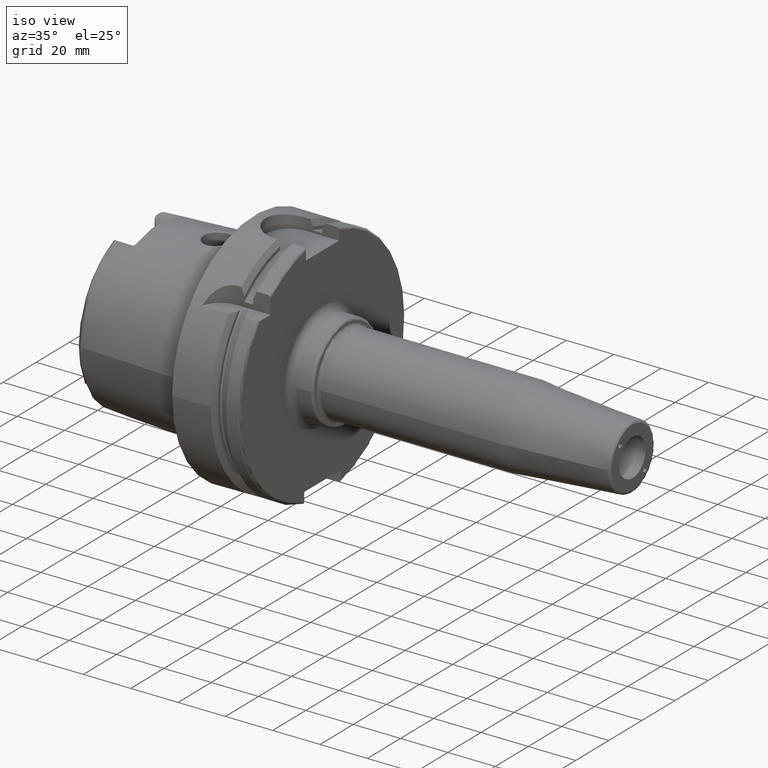
[diagram: clean part render]
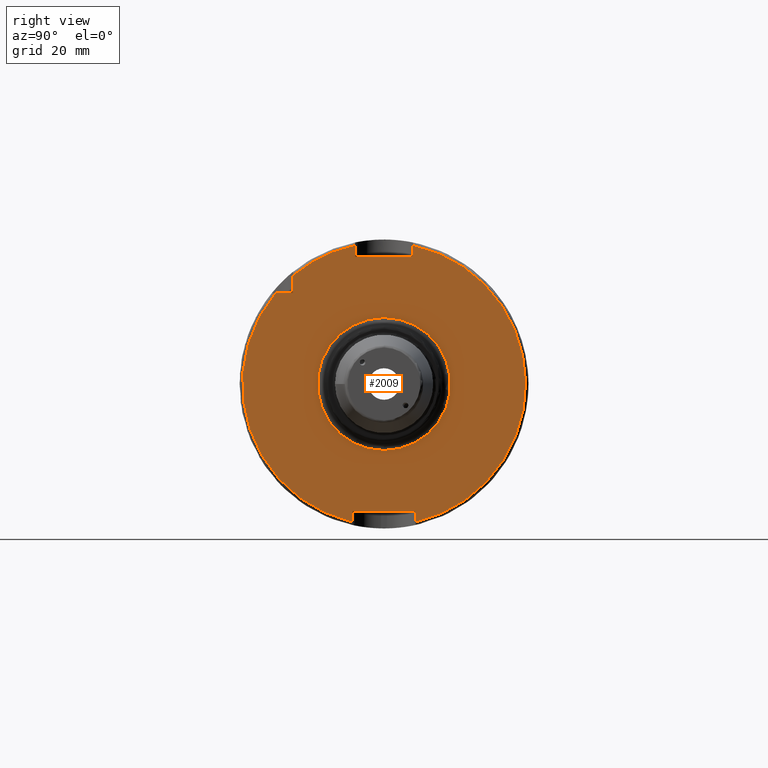
[diagram: tour spotlight — one face highlighted and labeled with its STEP entity id]
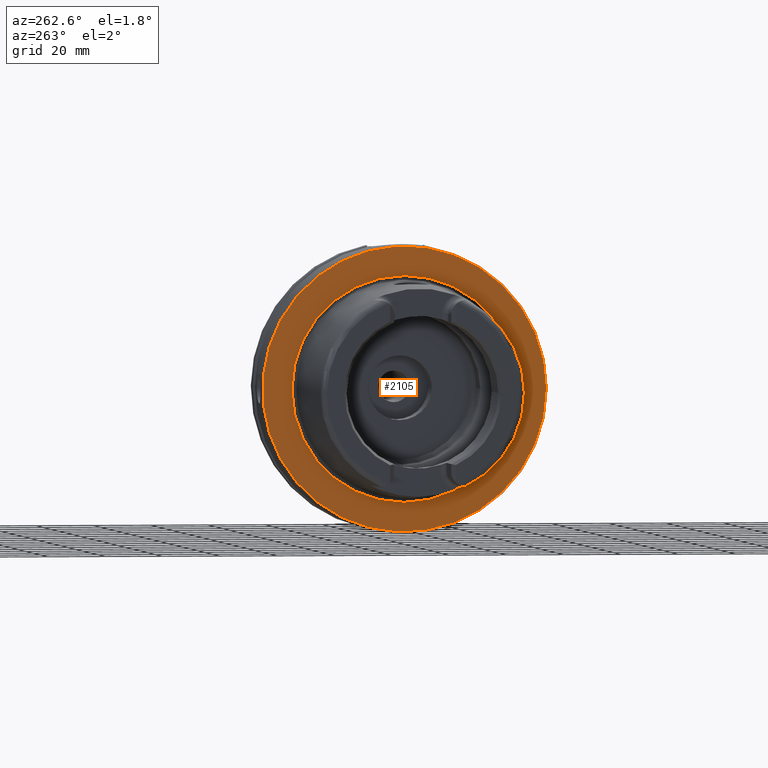
[diagram: tour spotlight — one face highlighted and labeled with its STEP entity id]
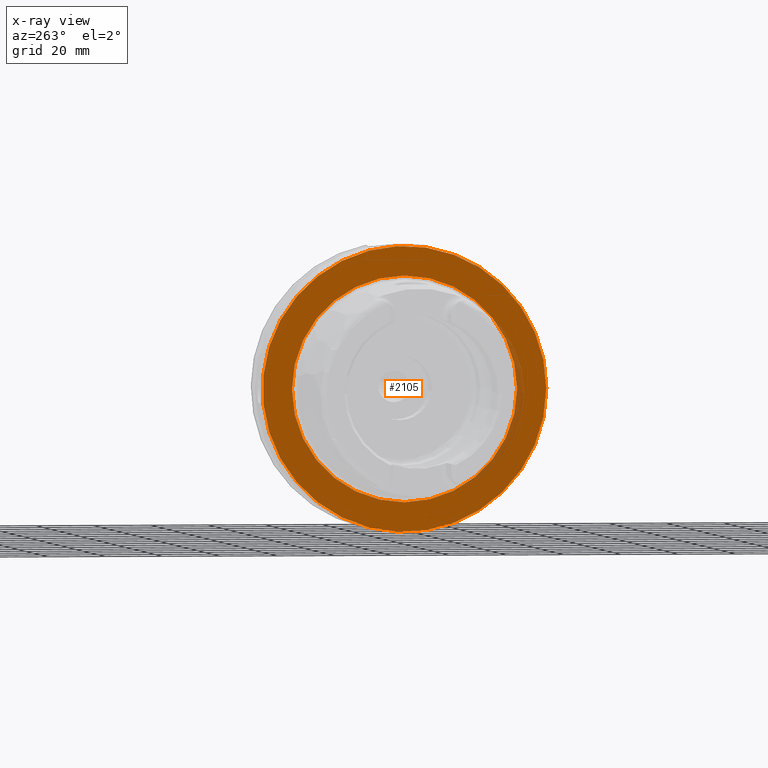
[diagram: x-ray of the same camera — body ghosted, this tour face saturated]
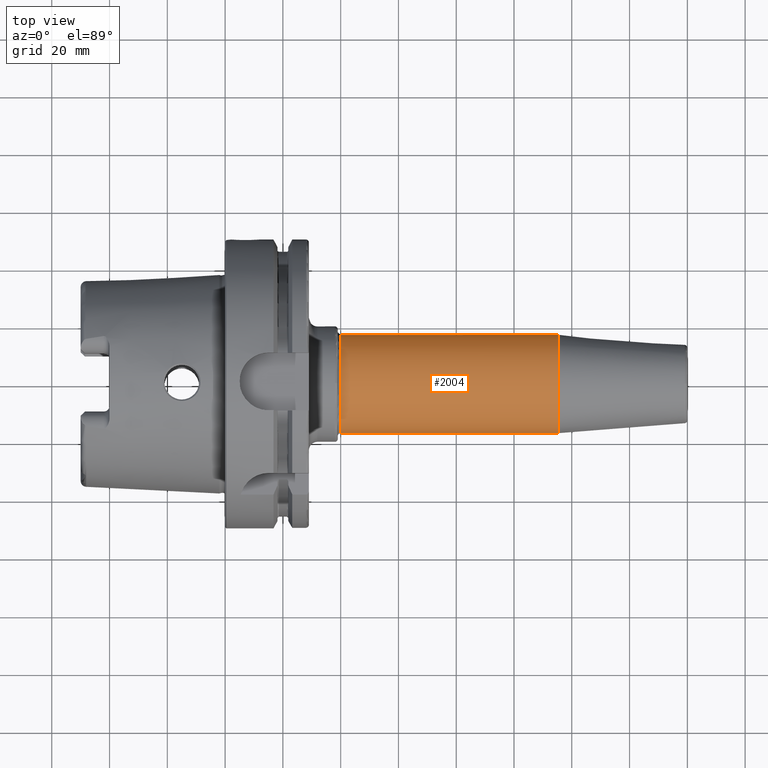
[diagram: tour spotlight — one face highlighted and labeled with its STEP entity id]
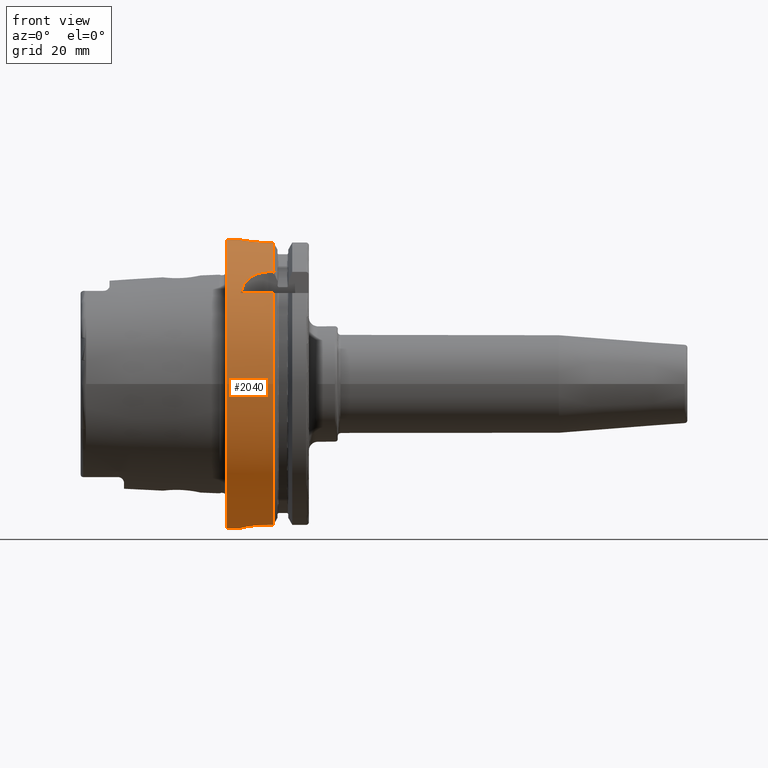
[diagram: tour spotlight — one face highlighted and labeled with its STEP entity id]
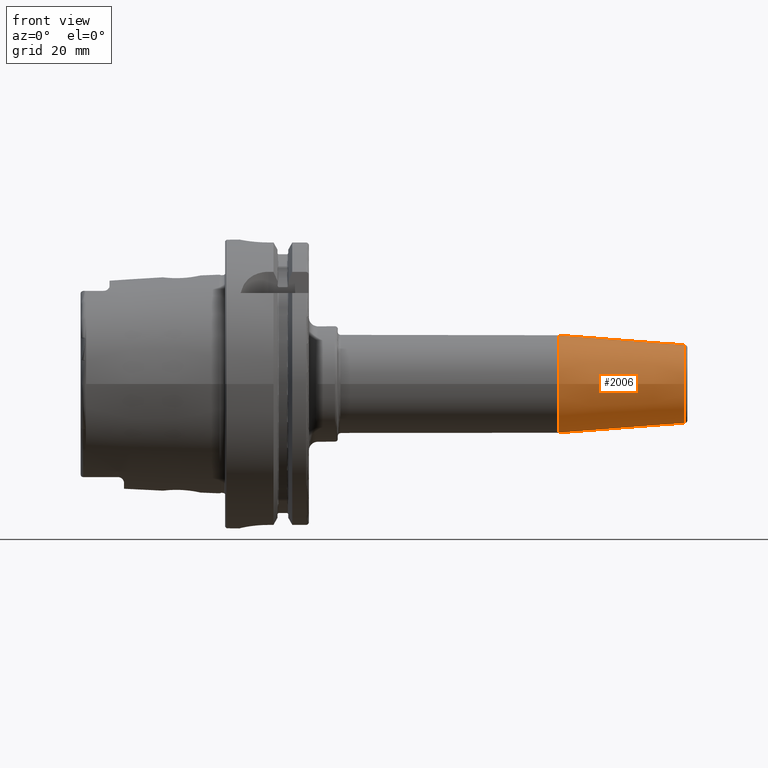
[diagram: tour spotlight — one face highlighted and labeled with its STEP entity id]
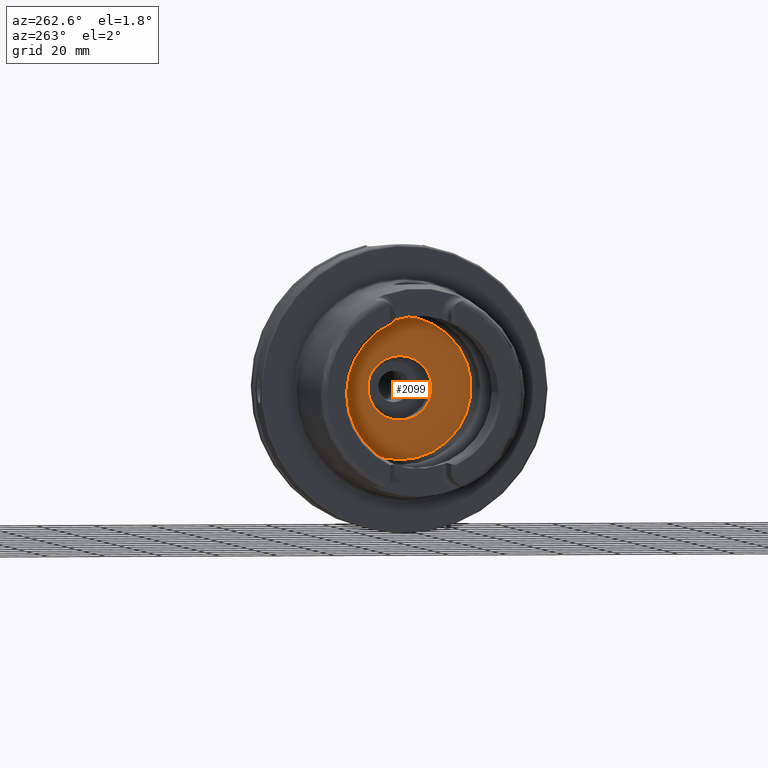
[diagram: tour spotlight — one face highlighted and labeled with its STEP entity id]
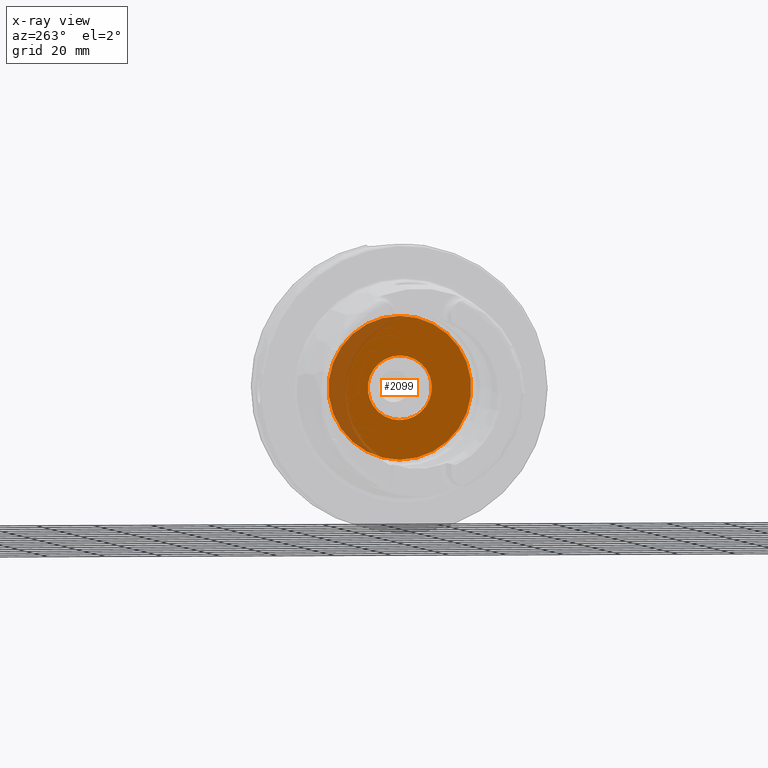
[diagram: x-ray of the same camera — body ghosted, this tour face saturated]
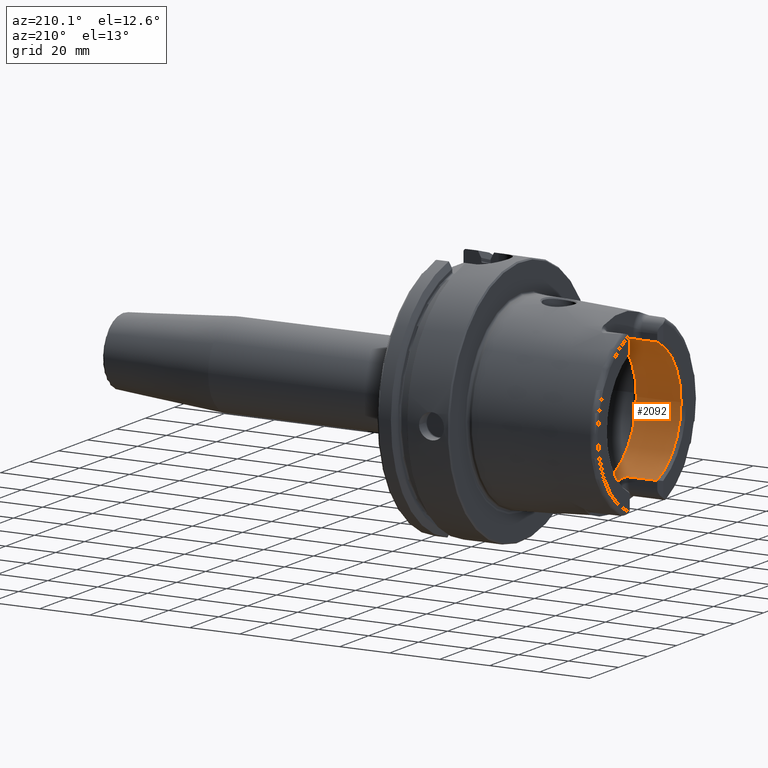
[diagram: tour spotlight — one face highlighted and labeled with its STEP entity id]
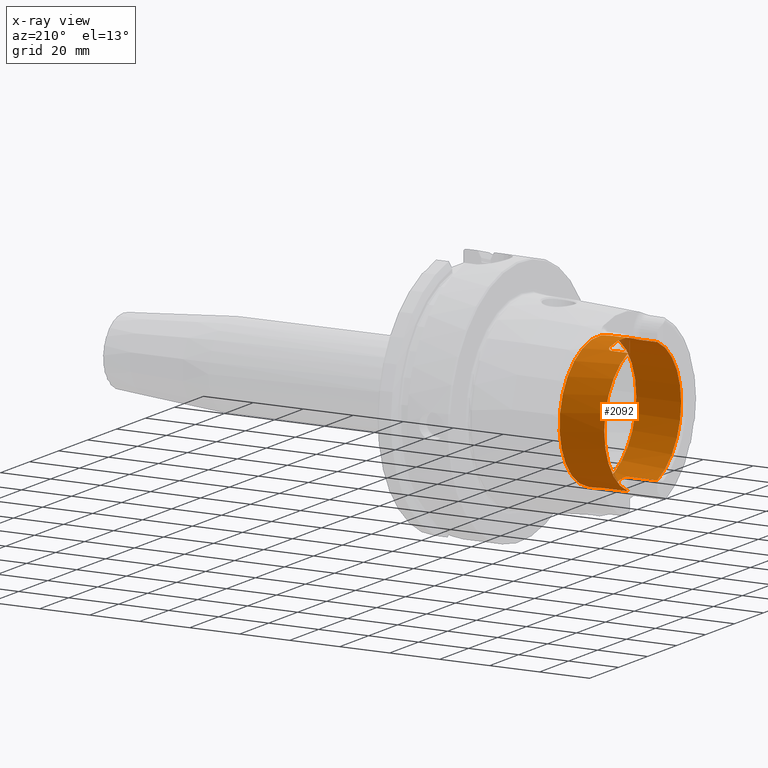
[diagram: x-ray of the same camera — body ghosted, this tour face saturated]
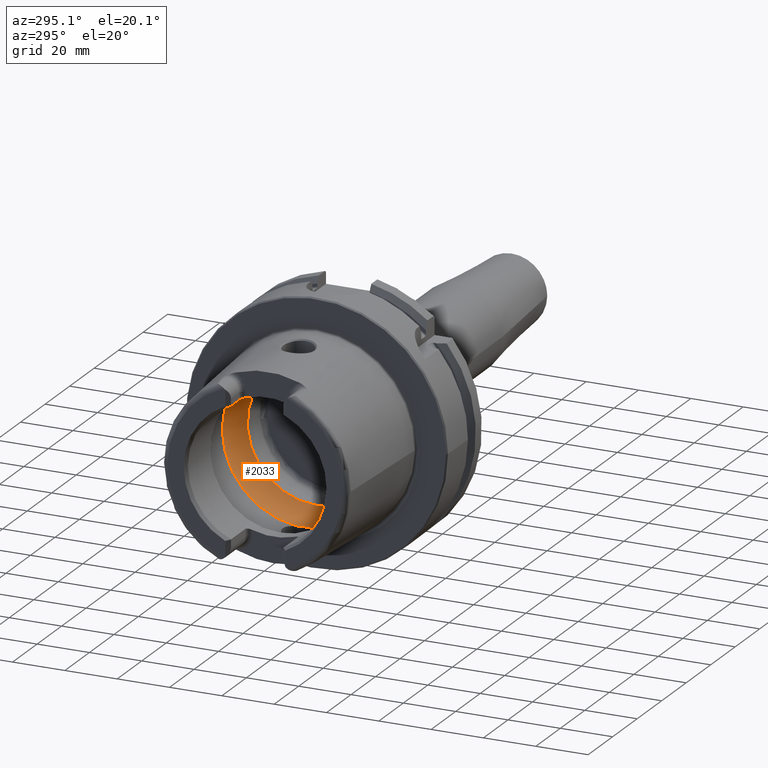
[diagram: tour spotlight — one face highlighted and labeled with its STEP entity id]
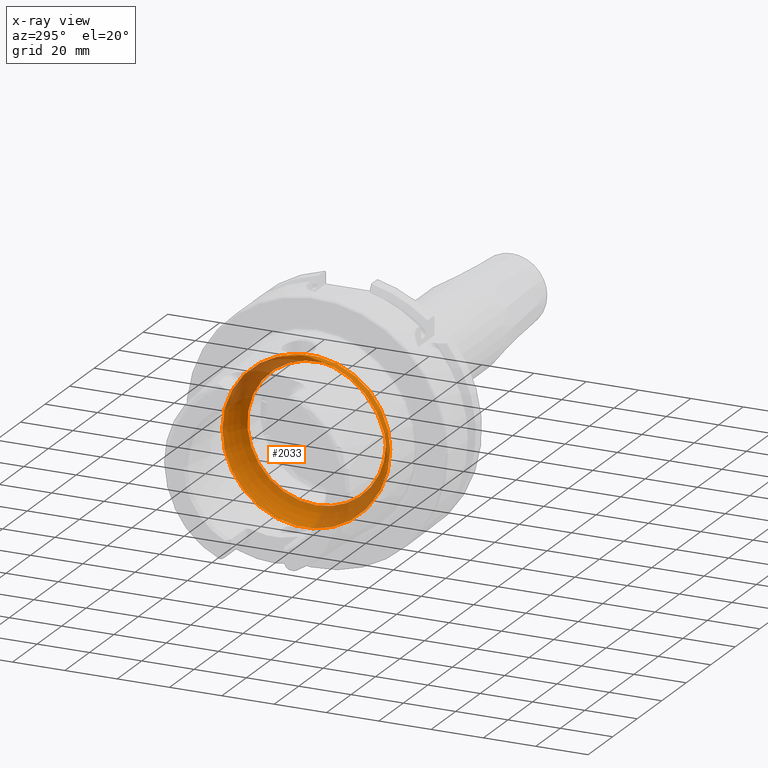
[diagram: x-ray of the same camera — body ghosted, this tour face saturated]
A machine part: a face-by-face anatomy tour. The part has 121 B-rep faces; the first image is the clean iso view, then the 8 largest visible faces are spotlighted one at a time (largest first), each with its STEP entity span.

Face 1 — right view, entity #2009. In plain terms, the highlighted planar face has unit normal (1, 0, 0).
Definition (entity closure, byte-faithful):
#89=FACE_BOUND('',#351,.T.);
#101=PLANE('',#2175);
#225=FACE_OUTER_BOUND('',#350,.T.);
#350=EDGE_LOOP('',(#1398,#1399,#1400,#1401,#1402,#1403,#1404,#1405,#1406,
#1407,#1408));
#351=EDGE_LOOP('',(#1409));
#475=LINE('',#3106,#581);
#476=LINE('',#3110,#582);
#477=LINE('',#3112,#583);
#478=LINE('',#3114,#584);
#479=LINE('',#3118,#585);
#480=LINE('',#3120,#586);
#481=LINE('',#3122,#587);
#482=LINE('',#3125,#588);
#581=VECTOR('',#2485,10.);
#582=VECTOR('',#2488,10.);
#583=VECTOR('',#2489,10.);
#584=VECTOR('',#2490,10.);
#585=VECTOR('',#2493,10.);
#586=VECTOR('',#2494,10.);
#587=VECTOR('',#2495,10.);
#588=VECTOR('',#2498,10.);
#699=CIRCLE('',#2174,23.);
#700=CIRCLE('',#2176,49.);
#701=CIRCLE('',#2177,49.);
#702=CIRCLE('',#2178,49.);
#834=VERTEX_POINT('',#3100);
#835=VERTEX_POINT('',#3104);
#836=VERTEX_POINT('',#3105);
#837=VERTEX_POINT('',#3107);
#838=VERTEX_POINT('',#3109);
#839=VERTEX_POINT('',#3111);
#840=VERTEX_POINT('',#3113);
#841=VERTEX_POINT('',#3115);
#842=VERTEX_POINT('',#3117);
#843=VERTEX_POINT('',#3119);
#844=VERTEX_POINT('',#3121);
#845=VERTEX_POINT('',#3123);
#1051=EDGE_CURVE('',#834,#834,#699,.T.);
#1052=EDGE_CURVE('',#835,#836,#475,.T.);
#1053=EDGE_CURVE('',#836,#837,#700,.T.);
#1054=EDGE_CURVE('',#837,#838,#476,.T.);
#1055=EDGE_CURVE('',#838,#839,#477,.T.);
#1056=EDGE_CURVE('',#839,#840,#478,.T.);
#1057=EDGE_CURVE('',#840,#841,#701,.T.);
#1058=EDGE_CURVE('',#841,#842,#479,.T.);
#1059=EDGE_CURVE('',#842,#843,#480,.T.);
#1060=EDGE_CURVE('',#843,#844,#481,.T.);
#1061=EDGE_CURVE('',#844,#845,#702,.T.);
#1062=EDGE_CURVE('',#845,#835,#482,.T.);
#1398=ORIENTED_EDGE('',*,*,#1052,.T.);
#1399=ORIENTED_EDGE('',*,*,#1053,.T.);
#1400=ORIENTED_EDGE('',*,*,#1054,.T.);
#1401=ORIENTED_EDGE('',*,*,#1055,.T.);
#1402=ORIENTED_EDGE('',*,*,#1056,.T.);
#1403=ORIENTED_EDGE('',*,*,#1057,.T.);
#1404=ORIENTED_EDGE('',*,*,#1058,.T.);
#1405=ORIENTED_EDGE('',*,*,#1059,.T.);
#1406=ORIENTED_EDGE('',*,*,#1060,.T.);
#1407=ORIENTED_EDGE('',*,*,#1061,.T.);
#1408=ORIENTED_EDGE('',*,*,#1062,.T.);
#1409=ORIENTED_EDGE('',*,*,#1051,.F.);
#2009=ADVANCED_FACE('',(#225,#89),#101,.T.);
#2174=AXIS2_PLACEMENT_3D('',#3102,#2481,#2482);
#2175=AXIS2_PLACEMENT_3D('',#3103,#2483,#2484);
#2176=AXIS2_PLACEMENT_3D('',#3108,#2486,#2487);
#2177=AXIS2_PLACEMENT_3D('',#3116,#2491,#2492);
#2178=AXIS2_PLACEMENT_3D('',#3124,#2496,#2497);
#2481=DIRECTION('center_axis',(1.,0.,0.));
#2482=DIRECTION('ref_axis',(0.,-1.,-1.22464679914735E-16));
#2483=DIRECTION('center_axis',(1.,0.,0.));
#2484=DIRECTION('ref_axis',(0.,0.,-1.));
#2485=DIRECTION('',(0.,-1.,0.));
#2486=DIRECTION('center_axis',(1.,0.,0.));
#2487=DIRECTION('ref_axis',(0.,0.,-1.));
#2488=DIRECTION('',(0.,0.,1.));
#2489=DIRECTION('',(0.,1.,0.));
#2490=DIRECTION('',(0.,0.,-1.));
#2491=DIRECTION('center_axis',(1.,0.,0.));
#2492=DIRECTION('ref_axis',(0.,0.,-1.));
#2493=DIRECTION('',(0.,0.,-1.));
#2494=DIRECTION('',(0.,-1.,0.));
#2495=DIRECTION('',(0.,0.,1.));
#2496=DIRECTION('center_axis',(1.,0.,0.));
#2497=DIRECTION('ref_axis',(0.,0.,-1.));
#2498=DIRECTION('',(0.,0.,-1.));
#3100=CARTESIAN_POINT('',(29.,-2.81668763803891E-15,-23.));
#3102=CARTESIAN_POINT('Origin',(29.,0.,0.));
#3103=CARTESIAN_POINT('Origin',(29.,0.,0.));
#3104=CARTESIAN_POINT('',(29.,-31.5,31.5));
#3105=CARTESIAN_POINT('',(29.,-37.5333185316726,31.5));
#3106=CARTESIAN_POINT('',(29.,-18.25,31.5));
#3107=CARTESIAN_POINT('',(29.,-11.,-47.7493455452533));
#3108=CARTESIAN_POINT('Origin',(29.,0.,0.));
#3109=CARTESIAN_POINT('',(29.,-11.,-44.));
#3110=CARTESIAN_POINT('',(29.,-11.,-22.));
#3111=CARTESIAN_POINT('',(29.,11.,-44.));
#3112=CARTESIAN_POINT('',(29.,-5.55111512312578E-16,-44.));
#3113=CARTESIAN_POINT('',(29.,11.,-47.7493455452533));
#3114=CARTESIAN_POINT('',(29.,11.,-22.));
#3115=CARTESIAN_POINT('',(29.,10.,47.9687398208458));
#3116=CARTESIAN_POINT('Origin',(29.,0.,0.));
#3117=CARTESIAN_POINT('',(29.,10.,44.));
#3118=CARTESIAN_POINT('',(29.,10.,22.));
#3119=CARTESIAN_POINT('',(29.,-10.,44.));
#3120=CARTESIAN_POINT('',(29.,0.,44.));
#3121=CARTESIAN_POINT('',(29.,-10.,47.9687398208458));
#3122=CARTESIAN_POINT('',(29.,-10.,22.));
#3123=CARTESIAN_POINT('',(29.,-31.5,37.5333185316726));
#3124=CARTESIAN_POINT('Origin',(29.,0.,0.));
#3125=CARTESIAN_POINT('',(29.,-31.5,15.75));

Face 2 — auxiliary view, entity #2105. An x-ray twin of the same camera follows (body ghosted, this face saturated) — the face is partly hidden behind the body. In plain terms, the highlighted planar face has unit normal (-1, 0, 0).
Definition (entity closure, byte-faithful):
#98=FACE_BOUND('',#456,.T.);
#135=PLANE('',#2381);
#321=FACE_OUTER_BOUND('',#455,.T.);
#455=EDGE_LOOP('',(#1930));
#456=EDGE_LOOP('',(#1931));
#803=CIRCLE('',#2380,39.2747800249997);
#804=CIRCLE('',#2382,49.5);
#1018=VERTEX_POINT('',#4534);
#1019=VERTEX_POINT('',#4538);
#1327=EDGE_CURVE('',#1018,#1018,#803,.T.);
#1328=EDGE_CURVE('',#1019,#1019,#804,.T.);
#1930=ORIENTED_EDGE('',*,*,#1328,.F.);
#1931=ORIENTED_EDGE('',*,*,#1327,.T.);
#2105=ADVANCED_FACE('',(#321,#98),#135,.T.);
#2380=AXIS2_PLACEMENT_3D('',#4536,#2989,#2990);
#2381=AXIS2_PLACEMENT_3D('',#4537,#2991,#2992);
#2382=AXIS2_PLACEMENT_3D('',#4539,#2993,#2994);
#2989=DIRECTION('center_axis',(1.,0.,0.));
#2990=DIRECTION('ref_axis',(0.,0.,-1.));
#2991=DIRECTION('center_axis',(-1.,0.,0.));
#2992=DIRECTION('ref_axis',(0.,0.,1.));
#2993=DIRECTION('center_axis',(1.,0.,0.));
#2994=DIRECTION('ref_axis',(0.,0.,-1.));
#4534=CARTESIAN_POINT('',(-1.04950770296597E-15,-39.2747800249997,-4.80977336448322E-15));
#4536=CARTESIAN_POINT('Origin',(0.,0.,0.));
#4537=CARTESIAN_POINT('Origin',(0.,49.5,0.));
#4538=CARTESIAN_POINT('',(1.28369537222284E-15,-49.5,-6.0620016557794E-15));
#4539=CARTESIAN_POINT('Origin',(0.,0.,0.));

Face 3 — top view, entity #2004. In plain terms, the highlighted cylindrical surface (bore or boss wall) has radius 17 mm, axis along (1, 0, 0).
Definition (entity closure, byte-faithful):
#178=CYLINDRICAL_SURFACE('',#2162,17.);
#220=FACE_OUTER_BOUND('',#342,.T.);
#342=EDGE_LOOP('',(#1374,#1375,#1376,#1377,#1378));
#473=LINE('',#3085,#579);
#579=VECTOR('',#2459,17.);
#690=CIRCLE('',#2160,17.);
#691=CIRCLE('',#2161,17.);
#692=CIRCLE('',#2163,17.);
#827=VERTEX_POINT('',#3077);
#828=VERTEX_POINT('',#3079);
#829=VERTEX_POINT('',#3083);
#1040=EDGE_CURVE('',#827,#828,#690,.T.);
#1041=EDGE_CURVE('',#828,#827,#691,.T.);
#1042=EDGE_CURVE('',#829,#829,#692,.T.);
#1043=EDGE_CURVE('',#829,#828,#473,.T.);
#1374=ORIENTED_EDGE('',*,*,#1042,.F.);
#1375=ORIENTED_EDGE('',*,*,#1043,.T.);
#1376=ORIENTED_EDGE('',*,*,#1040,.F.);
#1377=ORIENTED_EDGE('',*,*,#1041,.F.);
#1378=ORIENTED_EDGE('',*,*,#1043,.F.);
#2004=ADVANCED_FACE('',(#220),#178,.T.);
#2160=AXIS2_PLACEMENT_3D('',#3080,#2451,#2452);
#2161=AXIS2_PLACEMENT_3D('',#3081,#2453,#2454);
#2162=AXIS2_PLACEMENT_3D('',#3082,#2455,#2456);
#2163=AXIS2_PLACEMENT_3D('',#3084,#2457,#2458);
#2451=DIRECTION('center_axis',(-1.,0.,0.));
#2452=DIRECTION('ref_axis',(0.,-1.,1.83697019872103E-16));
#2453=DIRECTION('center_axis',(-1.,0.,0.));
#2454=DIRECTION('ref_axis',(0.,-1.,1.83697019872103E-16));
#2455=DIRECTION('center_axis',(1.,0.,0.));
#2456=DIRECTION('ref_axis',(0.,1.,0.));
#2457=DIRECTION('center_axis',(1.,0.,0.));
#2458=DIRECTION('ref_axis',(0.,0.,-1.));
#2459=DIRECTION('',(-1.,0.,0.));
#3077=CARTESIAN_POINT('',(40.,-2.0818995585505E-15,17.));
#3079=CARTESIAN_POINT('',(40.,-17.,-2.0818995585505E-15));
#3080=CARTESIAN_POINT('Origin',(40.,0.,0.));
#3081=CARTESIAN_POINT('Origin',(40.,0.,0.));
#3082=CARTESIAN_POINT('Origin',(77.2641417116943,0.,0.));
#3083=CARTESIAN_POINT('',(115.528283423388,-17.,-2.0818995585505E-15));
#3084=CARTESIAN_POINT('Origin',(115.528283423388,0.,0.));
#3085=CARTESIAN_POINT('',(77.2641417116943,-17.,-2.0818995585505E-15));

Face 4 — front view, entity #2040. In plain terms, the highlighted cylindrical surface (bore or boss wall) has radius 50 mm, axis along (1, 0, 0).
Definition (entity closure, byte-faithful):
#56=B_SPLINE_CURVE_WITH_KNOTS('',3,(#3890,#3891,#3892,#3893,#3894,#3895,
#3896,#3897,#3898,#3899,#3900,#3901,#3902,#3903,#3904,#3905,#3906,#3907,
#3908,#3909,#3910,#3911,#3912,#3913,#3914,#3915),.UNSPECIFIED.,.F.,.F.,
(4,2,2,2,2,2,2,2,2,2,2,2,4),(0.,0.188478911015149,0.376957822030298,0.565436091508923,
0.753914360987547,0.942392630466172,1.1308708999448,1.31934981095995,1.50782872197509,
1.69630763299024,1.88478654400539,2.07326481348402,2.26174308296264),
 .UNSPECIFIED.);
#57=B_SPLINE_CURVE_WITH_KNOTS('',3,(#3916,#3917,#3918,#3919,#3920,#3921,
#3922,#3923,#3924,#3925),.UNSPECIFIED.,.F.,.F.,(4,2,2,2,4),(2.26174308296264,
2.45022135244127,2.63869962191989,2.82717853293504,3.01565744395019),
 .UNSPECIFIED.);
#58=B_SPLINE_CURVE_WITH_KNOTS('',3,(#3929,#3930,#3931,#3932,#3933,#3934,
#3935,#3936,#3937,#3938,#3939,#3940),.UNSPECIFIED.,.F.,.F.,(4,2,2,2,2,4),
(1.13213255574021,1.59216410027009,1.87572541272146,2.15928672517283,2.38471683342296,
2.61014694167308),.UNSPECIFIED.);
#65=B_SPLINE_CURVE_WITH_KNOTS('',3,(#4053,#4054,#4055,#4056,#4057,#4058,
#4059,#4060,#4061,#4062,#4063,#4064,#4065,#4066,#4067,#4068,#4069,#4070),
 .UNSPECIFIED.,.F.,.F.,(4,2,2,2,2,2,2,2,4),(0.,0.377795255890194,0.755590511780389,
1.13336459804459,1.51113868430879,1.88891277057299,2.26668685683718,2.64448211272738,
3.02227736861757),.UNSPECIFIED.);
#66=B_SPLINE_CURVE_WITH_KNOTS('',3,(#4078,#4079,#4080,#4081,#4082,#4083,
#4084,#4085,#4086,#4087),.UNSPECIFIED.,.F.,.F.,(4,2,2,2,4),(0.,0.377863193874929,
0.755726387749858,1.13417752669663,1.51262866564341),.UNSPECIFIED.);
#67=B_SPLINE_CURVE_WITH_KNOTS('',3,(#4091,#4092,#4093,#4094,#4095,#4096,
#4097,#4098,#4099,#4100),.UNSPECIFIED.,.F.,.F.,(4,2,2,2,4),(1.50996806152532,
1.8884192004721,2.26687033941887,2.6447335332938,3.02259672716873),
 .UNSPECIFIED.);
#94=FACE_BOUND('',#387,.T.);
#190=CYLINDRICAL_SURFACE('',#2251,50.);
#256=FACE_OUTER_BOUND('',#386,.T.);
#386=EDGE_LOOP('',(#1592,#1593,#1594,#1595,#1596,#1597,#1598,#1599,#1600,
#1601,#1602,#1603,#1604,#1605,#1606,#1607,#1608,#1609));
#387=EDGE_LOOP('',(#1610,#1611));
#512=LINE('',#3946,#618);
#518=LINE('',#3998,#624);
#523=LINE('',#4051,#629);
#524=LINE('',#4072,#630);
#525=LINE('',#4076,#631);
#526=LINE('',#4102,#632);
#527=LINE('',#4106,#633);
#618=VECTOR('',#2670,10.);
#624=VECTOR('',#2678,10.);
#629=VECTOR('',#2687,10.);
#630=VECTOR('',#2688,10.);
#631=VECTOR('',#2691,10.);
#632=VECTOR('',#2694,10.);
#633=VECTOR('',#2697,50.);
#739=CIRCLE('',#2252,50.);
#740=CIRCLE('',#2253,50.);
#741=CIRCLE('',#2254,50.);
#742=CIRCLE('',#2255,50.);
#743=CIRCLE('',#2256,50.);
#744=CIRCLE('',#2257,50.);
#918=VERTEX_POINT('',#3887);
#919=VERTEX_POINT('',#3889);
#920=VERTEX_POINT('',#3927);
#921=VERTEX_POINT('',#3928);
#923=VERTEX_POINT('',#3945);
#932=VERTEX_POINT('',#3997);
#941=VERTEX_POINT('',#4048);
#942=VERTEX_POINT('',#4050);
#943=VERTEX_POINT('',#4052);
#944=VERTEX_POINT('',#4071);
#945=VERTEX_POINT('',#4073);
#946=VERTEX_POINT('',#4075);
#947=VERTEX_POINT('',#4077);
#948=VERTEX_POINT('',#4088);
#949=VERTEX_POINT('',#4090);
#950=VERTEX_POINT('',#4101);
#951=VERTEX_POINT('',#4103);
#952=VERTEX_POINT('',#4105);
#1161=EDGE_CURVE('',#919,#918,#56,.T.);
#1162=EDGE_CURVE('',#918,#919,#57,.T.);
#1163=EDGE_CURVE('',#920,#921,#58,.T.);
#1166=EDGE_CURVE('',#921,#923,#512,.T.);
#1177=EDGE_CURVE('',#932,#920,#518,.T.);
#1187=EDGE_CURVE('',#941,#923,#739,.T.);
#1188=EDGE_CURVE('',#941,#942,#523,.T.);
#1189=EDGE_CURVE('',#942,#943,#65,.T.);
#1190=EDGE_CURVE('',#943,#944,#524,.T.);
#1191=EDGE_CURVE('',#945,#944,#740,.T.);
#1192=EDGE_CURVE('',#945,#946,#525,.T.);
#1193=EDGE_CURVE('',#946,#947,#66,.T.);
#1194=EDGE_CURVE('',#947,#948,#741,.T.);
#1195=EDGE_CURVE('',#948,#949,#67,.T.);
#1196=EDGE_CURVE('',#949,#950,#526,.T.);
#1197=EDGE_CURVE('',#951,#950,#742,.T.);
#1198=EDGE_CURVE('',#951,#952,#527,.T.);
#1199=EDGE_CURVE('',#952,#952,#743,.T.);
#1200=EDGE_CURVE('',#932,#951,#744,.T.);
#1592=ORIENTED_EDGE('',*,*,#1177,.T.);
#1593=ORIENTED_EDGE('',*,*,#1163,.T.);
#1594=ORIENTED_EDGE('',*,*,#1166,.T.);
#1595=ORIENTED_EDGE('',*,*,#1187,.F.);
#1596=ORIENTED_EDGE('',*,*,#1188,.T.);
#1597=ORIENTED_EDGE('',*,*,#1189,.T.);
#1598=ORIENTED_EDGE('',*,*,#1190,.T.);
#1599=ORIENTED_EDGE('',*,*,#1191,.F.);
#1600=ORIENTED_EDGE('',*,*,#1192,.T.);
#1601=ORIENTED_EDGE('',*,*,#1193,.T.);
#1602=ORIENTED_EDGE('',*,*,#1194,.T.);
#1603=ORIENTED_EDGE('',*,*,#1195,.T.);
#1604=ORIENTED_EDGE('',*,*,#1196,.T.);
#1605=ORIENTED_EDGE('',*,*,#1197,.F.);
#1606=ORIENTED_EDGE('',*,*,#1198,.T.);
#1607=ORIENTED_EDGE('',*,*,#1199,.T.);
#1608=ORIENTED_EDGE('',*,*,#1198,.F.);
#1609=ORIENTED_EDGE('',*,*,#1200,.F.);
#1610=ORIENTED_EDGE('',*,*,#1161,.T.);
#1611=ORIENTED_EDGE('',*,*,#1162,.T.);
#2040=ADVANCED_FACE('',(#256,#94),#190,.T.);
#2251=AXIS2_PLACEMENT_3D('',#4047,#2683,#2684);
#2252=AXIS2_PLACEMENT_3D('',#4049,#2685,#2686);
#2253=AXIS2_PLACEMENT_3D('',#4074,#2689,#2690);
#2254=AXIS2_PLACEMENT_3D('',#4089,#2692,#2693);
#2255=AXIS2_PLACEMENT_3D('',#4104,#2695,#2696);
#2256=AXIS2_PLACEMENT_3D('',#4107,#2698,#2699);
#2257=AXIS2_PLACEMENT_3D('',#4108,#2700,#2701);
#2670=DIRECTION('',(1.,0.,0.));
#2678=DIRECTION('',(-1.,0.,0.));
#2683=DIRECTION('center_axis',(1.,0.,0.));
#2684=DIRECTION('ref_axis',(0.,1.,0.));
#2685=DIRECTION('center_axis',(1.,0.,0.));
#2686=DIRECTION('ref_axis',(0.,0.,-1.));
#2687=DIRECTION('',(-1.,0.,0.));
#2688=DIRECTION('',(1.,0.,0.));
#2689=DIRECTION('center_axis',(1.,0.,0.));
#2690=DIRECTION('ref_axis',(0.,0.,-1.));
#2691=DIRECTION('',(-1.,0.,0.));
#2692=DIRECTION('center_axis',(-1.,0.,0.));
#2693=DIRECTION('ref_axis',(0.,1.,0.));
#2694=DIRECTION('',(1.,0.,0.));
#2695=DIRECTION('center_axis',(1.,0.,0.));
#2696=DIRECTION('ref_axis',(0.,0.,-1.));
#2697=DIRECTION('',(-1.,0.,0.));
#2698=DIRECTION('center_axis',(1.,0.,0.));
#2699=DIRECTION('ref_axis',(0.,0.,-1.));
#2700=DIRECTION('center_axis',(1.,0.,0.));
#2701=DIRECTION('ref_axis',(0.,0.,-1.));
#3887=CARTESIAN_POINT('',(12.,50.,-6.12323399573677E-16));
#3889=CARTESIAN_POINT('',(6.99999999999999,49.749371855331,5.));
#3890=CARTESIAN_POINT('Ctrl Pts',(6.99999999999999,49.749371855331,5.));
#3891=CARTESIAN_POINT('Ctrl Pts',(6.37173696328283,49.749371855331,5.));
#3892=CARTESIAN_POINT('Ctrl Pts',(5.70188570880885,49.7624993987098,4.87435544587055));
#3893=CARTESIAN_POINT('Ctrl Pts',(4.4701142477173,49.8098541153698,4.36395693611591));
#3894=CARTESIAN_POINT('Ctrl Pts',(3.90815809537484,49.8433908660961,3.97922590724033));
#3895=CARTESIAN_POINT('Ctrl Pts',(3.02077560297968,49.9062957431473,3.09184341484517));
#3896=CARTESIAN_POINT('Ctrl Pts',(2.63604339567929,49.9397591808605,2.52988660036719));
#3897=CARTESIAN_POINT('Ctrl Pts',(2.12564400622109,49.9869460568296,1.29811292154946));
#3898=CARTESIAN_POINT('Ctrl Pts',(1.99999999999999,50.,0.628260898262081));
#3899=CARTESIAN_POINT('Ctrl Pts',(1.99999999999999,50.,-0.628260898262082));
#3900=CARTESIAN_POINT('Ctrl Pts',(2.12564400622109,49.9869460568296,-1.29811292154946));
#3901=CARTESIAN_POINT('Ctrl Pts',(2.63604339567929,49.9397591808605,-2.52988660036719));
#3902=CARTESIAN_POINT('Ctrl Pts',(3.02077560297968,49.9062957431473,-3.09184341484517));
#3903=CARTESIAN_POINT('Ctrl Pts',(3.90815809537484,49.8433908660961,-3.97922590724033));
#3904=CARTESIAN_POINT('Ctrl Pts',(4.4701142477173,49.8098541153698,-4.36395693611591));
#3905=CARTESIAN_POINT('Ctrl Pts',(5.70188570880885,49.7624993987098,-4.87435544587055));
#3906=CARTESIAN_POINT('Ctrl Pts',(6.37173696328283,49.749371855331,-5.));
#3907=CARTESIAN_POINT('Ctrl Pts',(7.62826303671716,49.749371855331,-5.));
#3908=CARTESIAN_POINT('Ctrl Pts',(8.29811429119113,49.7624993987098,-4.87435544587055));
#3909=CARTESIAN_POINT('Ctrl Pts',(9.52988575228269,49.8098541153698,-4.36395693611591));
#3910=CARTESIAN_POINT('Ctrl Pts',(10.0918419046251,49.8433908660961,-3.97922590724033));
#3911=CARTESIAN_POINT('Ctrl Pts',(10.9792243970203,49.9062957431473,-3.09184341484517));
#3912=CARTESIAN_POINT('Ctrl Pts',(11.3639566043207,49.9397591808605,-2.52988660036719));
#3913=CARTESIAN_POINT('Ctrl Pts',(11.8743559937789,49.9869460568296,-1.29811292154947));
#3914=CARTESIAN_POINT('Ctrl Pts',(12.,50.,-0.628260898262083));
#3915=CARTESIAN_POINT('Ctrl Pts',(12.,50.,-5.55111512312578E-16));
#3916=CARTESIAN_POINT('Ctrl Pts',(12.,50.,-5.55111512312578E-16));
#3917=CARTESIAN_POINT('Ctrl Pts',(12.,50.,0.628260898262082));
#3918=CARTESIAN_POINT('Ctrl Pts',(11.8743559937789,49.9869460568296,1.29811292154946));
#3919=CARTESIAN_POINT('Ctrl Pts',(11.3639566043207,49.9397591808605,2.52988660036719));
#3920=CARTESIAN_POINT('Ctrl Pts',(10.9792243970203,49.9062957431473,3.09184341484517));
#3921=CARTESIAN_POINT('Ctrl Pts',(10.0918419046251,49.8433908660961,3.97922590724033));
#3922=CARTESIAN_POINT('Ctrl Pts',(9.52988575228269,49.8098541153698,4.36395693611591));
#3923=CARTESIAN_POINT('Ctrl Pts',(8.29811429119113,49.7624993987098,4.87435544587055));
#3924=CARTESIAN_POINT('Ctrl Pts',(7.62826303671716,49.749371855331,5.));
#3925=CARTESIAN_POINT('Ctrl Pts',(6.99999999999999,49.749371855331,5.));
#3927=CARTESIAN_POINT('',(5.36310214079494,-38.8297566307078,31.5));
#3928=CARTESIAN_POINT('',(15.,-31.5,38.8297566307078));
#3929=CARTESIAN_POINT('Ctrl Pts',(5.36310214079494,-38.8297566307078,31.5));
#3930=CARTESIAN_POINT('Ctrl Pts',(5.63795050776221,-37.8378299510303,32.722738779917));
#3931=CARTESIAN_POINT('Ctrl Pts',(6.08245260240086,-36.8264130955983,33.8486741193789));
#3932=CARTESIAN_POINT('Ctrl Pts',(7.14730321206235,-35.2667182945212,35.4540138707062));
#3933=CARTESIAN_POINT('Ctrl Pts',(7.68113760815893,-34.6306580359392,36.0741351437033));
#3934=CARTESIAN_POINT('Ctrl Pts',(8.97436758466638,-33.4722127660808,37.1515365058173));
#3935=CARTESIAN_POINT('Ctrl Pts',(9.73574998094174,-32.9521170857844,37.6088911783762));
#3936=CARTESIAN_POINT('Ctrl Pts',(11.1521999725134,-32.2432973482077,38.2170233500259));
#3937=CARTESIAN_POINT('Ctrl Pts',(11.8888981504148,-31.9629772872452,38.4503075998006));
#3938=CARTESIAN_POINT('Ctrl Pts',(13.4369856471743,-31.5908755949743,38.7566077888176));
#3939=CARTESIAN_POINT('Ctrl Pts',(14.2485663058329,-31.5,38.8297566307078));
#3940=CARTESIAN_POINT('Ctrl Pts',(15.,-31.5,38.8297566307078));
#3945=CARTESIAN_POINT('',(16.7379709790786,-31.5,38.8297566307078));
#3946=CARTESIAN_POINT('',(8.61898548953931,-31.5,38.8297566307078));
#3997=CARTESIAN_POINT('',(16.7379709790786,-38.8297566307078,31.5));
#3998=CARTESIAN_POINT('',(8.61898548953931,-38.8297566307078,31.5));
#4047=CARTESIAN_POINT('Origin',(8.61898548953931,0.,0.));
#4048=CARTESIAN_POINT('',(16.7379709790786,-10.,48.9897948556636));
#4049=CARTESIAN_POINT('Origin',(16.7379709790786,0.,0.));
#4050=CARTESIAN_POINT('',(15.,-10.,48.9897948556636));
#4051=CARTESIAN_POINT('',(8.61898548953931,-10.,48.9897948556636));
#4052=CARTESIAN_POINT('',(15.,10.,48.9897948556636));
#4053=CARTESIAN_POINT('Ctrl Pts',(15.,-10.,48.9897948556636));
#4054=CARTESIAN_POINT('Ctrl Pts',(13.740682480366,-10.,48.9897948556636));
#4055=CARTESIAN_POINT('Ctrl Pts',(12.3998222283811,-9.74762796248614,49.0433876618447));
#4056=CARTESIAN_POINT('Ctrl Pts',(9.93707994969945,-8.72605417648382,49.2354150792771));
#4057=CARTESIAN_POINT('Ctrl Pts',(8.81489539818993,-7.95703102192089,49.3709085101933));
#4058=CARTESIAN_POINT('Ctrl Pts',(7.04301862271998,-6.18515424645094,49.6240337638318));
#4059=CARTESIAN_POINT('Ctrl Pts',(6.27395658455242,-5.06294861197626,49.7583347151863));
#4060=CARTESIAN_POINT('Ctrl Pts',(5.25235457764165,-2.60013306081865,49.9476188647081));
#4061=CARTESIAN_POINT('Ctrl Pts',(4.99999999999999,-1.259246954214,50.));
#4062=CARTESIAN_POINT('Ctrl Pts',(4.99999999999999,1.259246954214,50.));
#4063=CARTESIAN_POINT('Ctrl Pts',(5.25235457764165,2.60013306081865,49.9476188647081));
#4064=CARTESIAN_POINT('Ctrl Pts',(6.27395658455242,5.06294861197626,49.7583347151863));
#4065=CARTESIAN_POINT('Ctrl Pts',(7.04301862271998,6.18515424645094,49.6240337638318));
#4066=CARTESIAN_POINT('Ctrl Pts',(8.81489539818993,7.95703102192089,49.3709085101933));
#4067=CARTESIAN_POINT('Ctrl Pts',(9.93707994969945,8.72605417648382,49.2354150792771));
#4068=CARTESIAN_POINT('Ctrl Pts',(12.3998222283811,9.74762796248614,49.0433876618447));
#4069=CARTESIAN_POINT('Ctrl Pts',(13.740682480366,10.,48.9897948556636));
#4070=CARTESIAN_POINT('Ctrl Pts',(15.,10.,48.9897948556636));
#4071=CARTESIAN_POINT('',(16.7379709790786,10.,48.9897948556636));
#4072=CARTESIAN_POINT('',(8.61898548953931,10.,48.9897948556636));
#4073=CARTESIAN_POINT('',(16.7379709790786,11.,-48.7749935930288));
#4074=CARTESIAN_POINT('Origin',(16.7379709790786,0.,0.));
#4075=CARTESIAN_POINT('',(15.,11.,-48.7749935930288));
#4076=CARTESIAN_POINT('',(8.61898548953931,11.,-48.7749935930288));
#4077=CARTESIAN_POINT('',(4.99999999999999,0.999999999999997,-49.9899989998));
#4078=CARTESIAN_POINT('Ctrl Pts',(15.,11.,-48.7749935930288));
#4079=CARTESIAN_POINT('Ctrl Pts',(13.7404560204169,11.,-48.7749935930288));
#4080=CARTESIAN_POINT('Ctrl Pts',(12.3998213084084,10.7475295248871,-48.8340306344483));
#4081=CARTESIAN_POINT('Ctrl Pts',(9.9383361278342,9.72667325975831,-49.0475663096823));
#4082=CARTESIAN_POINT('Ctrl Pts',(8.81713821454868,8.95850056252305,-49.1990678796225));
#4083=CARTESIAN_POINT('Ctrl Pts',(7.04551978193545,7.18842719108522,-49.4887060645896));
#4084=CARTESIAN_POINT('Ctrl Pts',(6.27594389465425,6.06650925178,-49.6460359942126));
#4085=CARTESIAN_POINT('Ctrl Pts',(5.25307325920197,3.60309260864685,-49.8853600567865));
#4086=CARTESIAN_POINT('Ctrl Pts',(4.99999999999999,2.26125147049483,-49.9647689238702));
#4087=CARTESIAN_POINT('Ctrl Pts',(4.99999999999999,1.,-49.9899989998));
#4088=CARTESIAN_POINT('',(4.99999999999999,-1.00000000000001,-49.9899989998));
#4089=CARTESIAN_POINT('Origin',(4.99999999999999,0.,0.));
#4090=CARTESIAN_POINT('',(15.,-11.,-48.7749935930288));
#4091=CARTESIAN_POINT('Ctrl Pts',(4.99999999999999,-1.,-49.9899989998));
#4092=CARTESIAN_POINT('Ctrl Pts',(4.99999999999999,-2.26125147049483,-49.9647689238702));
#4093=CARTESIAN_POINT('Ctrl Pts',(5.25307325920197,-3.60309260864686,-49.8853600567865));
#4094=CARTESIAN_POINT('Ctrl Pts',(6.27594389465425,-6.06650925178001,-49.6460359942126));
#4095=CARTESIAN_POINT('Ctrl Pts',(7.04551978193545,-7.18842719108522,-49.4887060645896));
#4096=CARTESIAN_POINT('Ctrl Pts',(8.81713821454868,-8.95850056252306,-49.1990678796225));
#4097=CARTESIAN_POINT('Ctrl Pts',(9.9383361278342,-9.72667325975831,-49.0475663096823));
#4098=CARTESIAN_POINT('Ctrl Pts',(12.3998213084084,-10.7475295248871,-48.8340306344483));
#4099=CARTESIAN_POINT('Ctrl Pts',(13.7404560204169,-11.,-48.7749935930288));
#4100=CARTESIAN_POINT('Ctrl Pts',(15.,-11.,-48.7749935930288));
#4101=CARTESIAN_POINT('',(16.7379709790786,-11.,-48.7749935930288));
#4102=CARTESIAN_POINT('',(8.61898548953931,-11.,-48.7749935930288));
#4103=CARTESIAN_POINT('',(16.7379709790786,-50.,-6.12323399573677E-15));
#4104=CARTESIAN_POINT('Origin',(16.7379709790786,0.,0.));
#4105=CARTESIAN_POINT('',(0.5,-50.,-6.12323399573677E-15));
#4106=CARTESIAN_POINT('',(8.61898548953931,-50.,-6.12323399573677E-15));
#4107=CARTESIAN_POINT('Origin',(0.5,0.,0.));
#4108=CARTESIAN_POINT('Origin',(16.7379709790786,0.,0.));

Face 5 — front view, entity #2006. In plain terms, the highlighted conical surface has half-angle 4.5 deg.
Definition (entity closure, byte-faithful):
#222=FACE_OUTER_BOUND('',#344,.T.);
#344=EDGE_LOOP('',(#1384,#1385,#1386,#1387,#1388));
#474=LINE('',#3095,#580);
#580=VECTOR('',#2472,15.25);
#692=CIRCLE('',#2163,17.);
#695=CIRCLE('',#2167,13.5725268420749);
#696=CIRCLE('',#2168,13.5725268420749);
#829=VERTEX_POINT('',#3083);
#831=VERTEX_POINT('',#3089);
#832=VERTEX_POINT('',#3091);
#1042=EDGE_CURVE('',#829,#829,#692,.T.);
#1046=EDGE_CURVE('',#831,#832,#695,.T.);
#1047=EDGE_CURVE('',#832,#831,#696,.T.);
#1048=EDGE_CURVE('',#832,#829,#474,.T.);
#1384=ORIENTED_EDGE('',*,*,#1047,.F.);
#1385=ORIENTED_EDGE('',*,*,#1048,.T.);
#1386=ORIENTED_EDGE('',*,*,#1042,.T.);
#1387=ORIENTED_EDGE('',*,*,#1048,.F.);
#1388=ORIENTED_EDGE('',*,*,#1046,.F.);
#1982=CONICAL_SURFACE('',#2169,15.25,0.0785398163397448);
#2006=ADVANCED_FACE('',(#222),#1982,.T.);
#2163=AXIS2_PLACEMENT_3D('',#3084,#2457,#2458);
#2167=AXIS2_PLACEMENT_3D('',#3092,#2466,#2467);
#2168=AXIS2_PLACEMENT_3D('',#3093,#2468,#2469);
#2169=AXIS2_PLACEMENT_3D('',#3094,#2470,#2471);
#2457=DIRECTION('center_axis',(1.,0.,0.));
#2458=DIRECTION('ref_axis',(0.,0.,-1.));
#2466=DIRECTION('center_axis',(1.,0.,0.));
#2467=DIRECTION('ref_axis',(0.,-1.,3.06161699786838E-17));
#2468=DIRECTION('center_axis',(1.,0.,0.));
#2469=DIRECTION('ref_axis',(0.,-1.,3.06161699786838E-17));
#2470=DIRECTION('center_axis',(-1.,0.,0.));
#2471=DIRECTION('ref_axis',(0.,1.,0.));
#2472=DIRECTION('',(-0.996917333733128,-0.0784590957278449,-9.6084680447101E-18));
#3083=CARTESIAN_POINT('',(115.528283423388,-17.,-2.0818995585505E-15));
#3084=CARTESIAN_POINT('Origin',(115.528283423388,0.,0.));
#3089=CARTESIAN_POINT('',(159.078459095728,-1.66215515534886E-15,13.5725268420749));
#3091=CARTESIAN_POINT('',(159.078459095728,-13.5725268420749,-1.66215515534886E-15));
#3092=CARTESIAN_POINT('Origin',(159.078459095728,0.,-2.07769394418607E-15));
#3093=CARTESIAN_POINT('Origin',(159.078459095728,0.,-2.07769394418607E-15));
#3094=CARTESIAN_POINT('Origin',(137.764141711694,0.,0.));
#3095=CARTESIAN_POINT('',(137.764141711694,-15.25,-1.86758636869971E-15));

Face 6 — auxiliary view, entity #2099. An x-ray twin of the same camera follows (body ghosted, this face saturated) — the face is partly hidden behind the body. In plain terms, the highlighted planar face has unit normal (1, 0, 0).
Definition (entity closure, byte-faithful):
#97=FACE_BOUND('',#449,.T.);
#134=PLANE('',#2365);
#315=FACE_OUTER_BOUND('',#448,.T.);
#448=EDGE_LOOP('',(#1900));
#449=EDGE_LOOP('',(#1901));
#787=CIRCLE('',#2354,11.188101);
#794=CIRCLE('',#2366,24.9);
#1005=VERTEX_POINT('',#4491);
#1011=VERTEX_POINT('',#4511);
#1306=EDGE_CURVE('',#1005,#1005,#787,.T.);
#1315=EDGE_CURVE('',#1011,#1011,#794,.T.);
#1900=ORIENTED_EDGE('',*,*,#1315,.T.);
#1901=ORIENTED_EDGE('',*,*,#1306,.T.);
#2099=ADVANCED_FACE('',(#315,#97),#134,.F.);
#2354=AXIS2_PLACEMENT_3D('',#4492,#2932,#2933);
#2365=AXIS2_PLACEMENT_3D('',#4510,#2956,#2957);
#2366=AXIS2_PLACEMENT_3D('',#4512,#2958,#2959);
#2932=DIRECTION('center_axis',(1.,0.,0.));
#2933=DIRECTION('ref_axis',(0.,0.,1.));
#2956=DIRECTION('center_axis',(1.,0.,0.));
#2957=DIRECTION('ref_axis',(0.,0.,-1.));
#2958=DIRECTION('center_axis',(-1.,0.,0.));
#2959=DIRECTION('ref_axis',(0.,0.,1.));
#4491=CARTESIAN_POINT('',(12.5,-1.37014720781873E-15,-11.188101));
#4492=CARTESIAN_POINT('Origin',(12.5,0.,0.));
#4510=CARTESIAN_POINT('Origin',(12.5,24.9,0.));
#4511=CARTESIAN_POINT('',(12.5,-3.04937052987691E-15,-24.9));
#4512=CARTESIAN_POINT('Origin',(12.5,0.,0.));

Face 7 — auxiliary view, entity #2092. An x-ray twin of the same camera follows (body ghosted, this face saturated) — the face is partly hidden behind the body. In plain terms, the highlighted cylindrical surface (bore or boss wall) has radius 26.5 mm, axis along (-1, 0, 0).
Definition (entity closure, byte-faithful):
#80=B_SPLINE_CURVE_WITH_KNOTS('',3,(#4374,#4375,#4376,#4377,#4378,#4379,
#4380,#4381,#4382,#4383),.UNSPECIFIED.,.F.,.F.,(4,2,2,2,4),(0.307245873696209,
0.387318131676521,0.467390389656833,0.542677307505841,0.617964225354849),
 .UNSPECIFIED.);
#81=B_SPLINE_CURVE_WITH_KNOTS('',3,(#4392,#4393,#4394,#4395,#4396,#4397,
#4398,#4399,#4400,#4401),.UNSPECIFIED.,.F.,.F.,(4,2,2,2,4),(0.61796422535485,
0.694491364966707,0.771018504578565,0.849854597041439,0.928690689504313),
 .UNSPECIFIED.);
#82=B_SPLINE_CURVE_WITH_KNOTS('',3,(#4414,#4415,#4416,#4417,#4418,#4419,
#4420,#4421,#4422,#4423),.UNSPECIFIED.,.F.,.F.,(4,2,2,2,4),(0.617964225354849,
0.693251143203857,0.768538061052865,0.848610319033177,0.928682577013489),
 .UNSPECIFIED.);
#83=B_SPLINE_CURVE_WITH_KNOTS('',3,(#4443,#4444,#4445,#4446,#4447,#4448,
#4449,#4450,#4451,#4452),.UNSPECIFIED.,.F.,.F.,(4,2,2,2,4),(0.307245873696209,
0.387318131676521,0.467390389656833,0.542677307505841,0.617964225354849),
 .UNSPECIFIED.);
#206=CYLINDRICAL_SURFACE('',#2349,26.5);
#308=FACE_OUTER_BOUND('',#439,.T.);
#439=EDGE_LOOP('',(#1859,#1860,#1861,#1862,#1863,#1864,#1865,#1866,#1867,
#1868,#1869,#1870,#1871,#1872,#1873,#1874,#1875));
#490=LINE('',#3158,#596);
#498=LINE('',#3233,#604);
#502=LINE('',#3297,#608);
#561=LINE('',#4439,#667);
#565=LINE('',#4487,#671);
#596=VECTOR('',#2534,10.);
#604=VECTOR('',#2580,10.);
#608=VECTOR('',#2602,10.);
#667=VECTOR('',#2881,10.);
#671=VECTOR('',#2925,26.5);
#712=CIRCLE('',#2203,26.5);
#713=CIRCLE('',#2204,26.5);
#776=CIRCLE('',#2328,26.5);
#781=CIRCLE('',#2340,26.5);
#782=CIRCLE('',#2343,26.5);
#785=CIRCLE('',#2350,26.5);
#786=CIRCLE('',#2351,26.5);
#853=VERTEX_POINT('',#3148);
#856=VERTEX_POINT('',#3156);
#865=VERTEX_POINT('',#3205);
#867=VERTEX_POINT('',#3211);
#868=VERTEX_POINT('',#3213);
#874=VERTEX_POINT('',#3231);
#880=VERTEX_POINT('',#3264);
#885=VERTEX_POINT('',#3296);
#992=VERTEX_POINT('',#4372);
#994=VERTEX_POINT('',#4391);
#998=VERTEX_POINT('',#4412);
#999=VERTEX_POINT('',#4413);
#1001=VERTEX_POINT('',#4433);
#1003=VERTEX_POINT('',#4484);
#1004=VERTEX_POINT('',#4485);
#1077=EDGE_CURVE('',#853,#856,#490,.T.);
#1090=EDGE_CURVE('',#867,#868,#712,.T.);
#1091=EDGE_CURVE('',#868,#865,#713,.T.);
#1100=EDGE_CURVE('',#867,#874,#498,.T.);
#1113=EDGE_CURVE('',#885,#880,#502,.T.);
#1271=EDGE_CURVE('',#992,#874,#80,.T.);
#1275=EDGE_CURVE('',#885,#994,#81,.T.);
#1281=EDGE_CURVE('',#998,#999,#82,.T.);
#1287=EDGE_CURVE('',#1001,#999,#776,.T.);
#1290=EDGE_CURVE('',#998,#865,#561,.T.);
#1293=EDGE_CURVE('',#1001,#856,#83,.T.);
#1297=EDGE_CURVE('',#992,#994,#781,.T.);
#1299=EDGE_CURVE('',#853,#880,#782,.T.);
#1303=EDGE_CURVE('',#1003,#1004,#785,.T.);
#1304=EDGE_CURVE('',#1003,#868,#565,.T.);
#1305=EDGE_CURVE('',#1004,#1003,#786,.T.);
#1859=ORIENTED_EDGE('',*,*,#1303,.F.);
#1860=ORIENTED_EDGE('',*,*,#1304,.T.);
#1861=ORIENTED_EDGE('',*,*,#1090,.F.);
#1862=ORIENTED_EDGE('',*,*,#1100,.T.);
#1863=ORIENTED_EDGE('',*,*,#1271,.F.);
#1864=ORIENTED_EDGE('',*,*,#1297,.T.);
#1865=ORIENTED_EDGE('',*,*,#1275,.F.);
#1866=ORIENTED_EDGE('',*,*,#1113,.T.);
#1867=ORIENTED_EDGE('',*,*,#1299,.F.);
#1868=ORIENTED_EDGE('',*,*,#1077,.T.);
#1869=ORIENTED_EDGE('',*,*,#1293,.F.);
#1870=ORIENTED_EDGE('',*,*,#1287,.T.);
#1871=ORIENTED_EDGE('',*,*,#1281,.F.);
#1872=ORIENTED_EDGE('',*,*,#1290,.T.);
#1873=ORIENTED_EDGE('',*,*,#1091,.F.);
#1874=ORIENTED_EDGE('',*,*,#1304,.F.);
#1875=ORIENTED_EDGE('',*,*,#1305,.F.);
#2092=ADVANCED_FACE('',(#308),#206,.F.);
#2203=AXIS2_PLACEMENT_3D('',#3214,#2558,#2559);
#2204=AXIS2_PLACEMENT_3D('',#3215,#2560,#2561);
#2328=AXIS2_PLACEMENT_3D('',#4434,#2874,#2875);
#2340=AXIS2_PLACEMENT_3D('',#4461,#2902,#2903);
#2343=AXIS2_PLACEMENT_3D('',#4476,#2908,#2909);
#2349=AXIS2_PLACEMENT_3D('',#4483,#2921,#2922);
#2350=AXIS2_PLACEMENT_3D('',#4486,#2923,#2924);
#2351=AXIS2_PLACEMENT_3D('',#4488,#2926,#2927);
#2534=DIRECTION('',(1.,0.,0.));
#2558=DIRECTION('center_axis',(1.,0.,0.));
#2559=DIRECTION('ref_axis',(0.,-1.,0.));
#2560=DIRECTION('center_axis',(1.,0.,0.));
#2561=DIRECTION('ref_axis',(0.,-1.,0.));
#2580=DIRECTION('',(1.,0.,0.));
#2602=DIRECTION('',(-1.,0.,0.));
#2874=DIRECTION('center_axis',(-1.,0.,0.));
#2875=DIRECTION('ref_axis',(0.,1.,0.));
#2881=DIRECTION('',(-1.,0.,0.));
#2902=DIRECTION('center_axis',(-1.,0.,0.));
#2903=DIRECTION('ref_axis',(0.,1.,0.));
#2908=DIRECTION('center_axis',(1.,0.,0.));
#2909=DIRECTION('ref_axis',(0.,-1.,0.));
#2921=DIRECTION('center_axis',(-1.,0.,0.));
#2922=DIRECTION('ref_axis',(0.,1.,0.));
#2923=DIRECTION('center_axis',(-1.,0.,0.));
#2924=DIRECTION('ref_axis',(0.,0.,1.));
#2925=DIRECTION('',(-1.,0.,0.));
#2926=DIRECTION('center_axis',(-1.,0.,0.));
#2927=DIRECTION('ref_axis',(0.,0.,1.));
#3148=CARTESIAN_POINT('',(-48.5,10.01,-24.5367051577835));
#3156=CARTESIAN_POINT('',(-37.,10.01,-24.5367051577835));
#3158=CARTESIAN_POINT('',(-40.2903629710818,10.01,-24.5367051577835));
#3205=CARTESIAN_POINT('',(-48.5,-10.01,-24.5367051577835));
#3211=CARTESIAN_POINT('',(-48.5,-10.01,24.5367051577835));
#3213=CARTESIAN_POINT('',(-48.5,-26.5,3.24531401774049E-15));
#3214=CARTESIAN_POINT('Origin',(-48.5,0.,0.));
#3215=CARTESIAN_POINT('Origin',(-48.5,0.,0.));
#3231=CARTESIAN_POINT('',(-42.,-10.01,24.5367051577835));
#3233=CARTESIAN_POINT('',(-40.2903629710818,-10.01,24.5367051577835));
#3264=CARTESIAN_POINT('',(-48.5,10.01,24.5367051577835));
#3296=CARTESIAN_POINT('',(-42.,10.01,24.5367051577835));
#3297=CARTESIAN_POINT('',(-40.2903629710818,10.01,24.5367051577835));
#4372=CARTESIAN_POINT('',(-40.,-8.01,25.2604414054862));
#4374=CARTESIAN_POINT('Ctrl Pts',(-40.,-8.01,25.2604414054862));
#4375=CARTESIAN_POINT('Ctrl Pts',(-40.,-8.26442271458071,25.1797648285777));
#4376=CARTESIAN_POINT('Ctrl Pts',(-40.0513332778729,-8.53503831367686,25.0892968127514));
#4377=CARTESIAN_POINT('Ctrl Pts',(-40.2604388709541,-9.03317850506395,24.9142806373643));
#4378=CARTESIAN_POINT('Ctrl Pts',(-40.4182028025644,-9.2607746884821,24.8299262887475));
#4379=CARTESIAN_POINT('Ctrl Pts',(-40.7762398849713,-9.61038047170956,24.6966285655713));
#4380=CARTESIAN_POINT('Ctrl Pts',(-40.996584045901,-9.75993653512726,24.6374761492843));
#4381=CARTESIAN_POINT('Ctrl Pts',(-41.4829332858843,-9.95981108540838,24.557356442995));
#4382=CARTESIAN_POINT('Ctrl Pts',(-41.74904360717,-10.01,24.5367051577835));
#4383=CARTESIAN_POINT('Ctrl Pts',(-42.,-10.01,24.5367051577835));
#4391=CARTESIAN_POINT('',(-40.,8.01,25.2604414054862));
#4392=CARTESIAN_POINT('Ctrl Pts',(-42.,10.01,24.5367051577835));
#4393=CARTESIAN_POINT('Ctrl Pts',(-41.7449095346271,10.01,24.5367051577835));
#4394=CARTESIAN_POINT('Ctrl Pts',(-41.4747619014646,9.95816285425487,24.5580391842641));
#4395=CARTESIAN_POINT('Ctrl Pts',(-40.9823460284033,9.75229566196282,24.640515927451));
#4396=CARTESIAN_POINT('Ctrl Pts',(-40.7599680829949,9.59839520774108,24.7013267120605));
#4397=CARTESIAN_POINT('Ctrl Pts',(-40.4063494382929,9.24477656303909,24.8358806096526));
#4398=CARTESIAN_POINT('Ctrl Pts',(-40.2529543645221,9.01930384320105,24.9192727261742));
#4399=CARTESIAN_POINT('Ctrl Pts',(-40.049776768453,8.52719637786957,25.0919293188873));
#4400=CARTESIAN_POINT('Ctrl Pts',(-40.,8.26049490494288,25.1810103236462));
#4401=CARTESIAN_POINT('Ctrl Pts',(-40.,8.01,25.2604414054862));
#4412=CARTESIAN_POINT('',(-37.,-10.01,-24.5367051577835));
#4413=CARTESIAN_POINT('',(-35.,-8.01,-25.2604414054862));
#4414=CARTESIAN_POINT('Ctrl Pts',(-37.,-10.01,-24.5367051577835));
#4415=CARTESIAN_POINT('Ctrl Pts',(-36.74904360717,-10.01,-24.5367051577835));
#4416=CARTESIAN_POINT('Ctrl Pts',(-36.4829332858843,-9.95981108540838,-24.557356442995));
#4417=CARTESIAN_POINT('Ctrl Pts',(-35.9965840459011,-9.75993653512726,-24.6374761492843));
#4418=CARTESIAN_POINT('Ctrl Pts',(-35.7762398849713,-9.61038047170956,-24.6966285655713));
#4419=CARTESIAN_POINT('Ctrl Pts',(-35.4182028025644,-9.2607746884821,-24.8299262887475));
#4420=CARTESIAN_POINT('Ctrl Pts',(-35.2604388709541,-9.03317850506395,-24.9142806373643));
#4421=CARTESIAN_POINT('Ctrl Pts',(-35.0513332778729,-8.53503831367686,-25.0892968127514));
#4422=CARTESIAN_POINT('Ctrl Pts',(-35.,-8.26442271458071,-25.1797648285777));
#4423=CARTESIAN_POINT('Ctrl Pts',(-35.,-8.01,-25.2604414054862));
#4433=CARTESIAN_POINT('',(-35.,8.01,-25.2604414054862));
#4434=CARTESIAN_POINT('Origin',(-35.,0.,0.));
#4439=CARTESIAN_POINT('',(-40.2903629710818,-10.01,-24.5367051577835));
#4443=CARTESIAN_POINT('Ctrl Pts',(-35.,8.01,-25.2604414054862));
#4444=CARTESIAN_POINT('Ctrl Pts',(-35.,8.26442271458071,-25.1797648285777));
#4445=CARTESIAN_POINT('Ctrl Pts',(-35.0513332778729,8.53503831367686,-25.0892968127514));
#4446=CARTESIAN_POINT('Ctrl Pts',(-35.2604388709541,9.03317850506395,-24.9142806373643));
#4447=CARTESIAN_POINT('Ctrl Pts',(-35.4182028025644,9.2607746884821,-24.8299262887475));
#4448=CARTESIAN_POINT('Ctrl Pts',(-35.7762398849713,9.61038047170956,-24.6966285655713));
#4449=CARTESIAN_POINT('Ctrl Pts',(-35.9965840459011,9.75993653512726,-24.6374761492843));
#4450=CARTESIAN_POINT('Ctrl Pts',(-36.4829332858843,9.95981108540838,-24.557356442995));
#4451=CARTESIAN_POINT('Ctrl Pts',(-36.74904360717,10.01,-24.5367051577835));
#4452=CARTESIAN_POINT('Ctrl Pts',(-37.,10.01,-24.5367051577835));
#4461=CARTESIAN_POINT('Origin',(-40.,0.,0.));
#4476=CARTESIAN_POINT('Origin',(-48.5,0.,0.));
#4483=CARTESIAN_POINT('Origin',(-40.2903629710818,0.,0.));
#4484=CARTESIAN_POINT('',(-30.5807259421637,-26.5,3.24531401774049E-15));
#4485=CARTESIAN_POINT('',(-30.5807259421637,-3.24531401774049E-15,-26.5));
#4486=CARTESIAN_POINT('Origin',(-30.5807259421637,0.,0.));
#4487=CARTESIAN_POINT('',(-40.2903629710818,-26.5,3.24531401774049E-15));
#4488=CARTESIAN_POINT('Origin',(-30.5807259421637,0.,0.));

Face 8 — auxiliary view, entity #2033. An x-ray twin of the same camera follows (body ghosted, this face saturated) — the face is partly hidden behind the body. In plain terms, the highlighted toroidal blend (fillet) surface has major radius 19.5 mm and minor (blend) radius 12 mm.
Definition (entity closure, byte-faithful):
#48=B_SPLINE_CURVE_WITH_KNOTS('',3,(#3616,#3617,#3618,#3619,#3620,#3621,
#3622,#3623,#3624,#3625),.UNSPECIFIED.,.F.,.F.,(4,2,2,2,4),(-0.606113644645353,
-0.532141714710631,-0.407956541554012,-0.344441109025195,-0.303157612487306),
 .UNSPECIFIED.);
#50=B_SPLINE_CURVE_WITH_KNOTS('',3,(#3658,#3659,#3660,#3661,#3662,#3663,
#3664,#3665,#3666,#3667),.UNSPECIFIED.,.F.,.F.,(4,2,2,2,4),(-0.303157612487306,
-0.297161587155601,-0.247817233363509,-0.174446982686599,0.),
 .UNSPECIFIED.);
#53=B_SPLINE_CURVE_WITH_KNOTS('',3,(#3808,#3809,#3810,#3811,#3812,#3813,
#3814,#3815,#3816,#3817),.UNSPECIFIED.,.F.,.F.,(4,2,2,2,4),(-0.606113644645388,
-0.532141714710621,-0.407956541553997,-0.344441109025146,-0.303157612487227),
 .UNSPECIFIED.);
#55=B_SPLINE_CURVE_WITH_KNOTS('',3,(#3850,#3851,#3852,#3853,#3854,#3855,
#3856,#3857,#3858,#3859),.UNSPECIFIED.,.F.,.F.,(4,2,2,2,4),(-0.303157612487227,
-0.297161587155532,-0.247817233363497,-0.174446982686607,0.),
 .UNSPECIFIED.);
#142=TOROIDAL_SURFACE('',#2236,19.5,12.);
#249=FACE_OUTER_BOUND('',#379,.T.);
#379=EDGE_LOOP('',(#1540,#1541,#1542,#1543,#1544,#1545,#1546,#1547,#1548,
#1549,#1550));
#726=CIRCLE('',#2231,31.5);
#729=CIRCLE('',#2234,31.5);
#730=CIRCLE('',#2235,31.5);
#731=CIRCLE('',#2237,26.5);
#732=CIRCLE('',#2238,26.5);
#733=CIRCLE('',#2239,12.);
#902=VERTEX_POINT('',#3613);
#903=VERTEX_POINT('',#3615);
#904=VERTEX_POINT('',#3626);
#907=VERTEX_POINT('',#3806);
#908=VERTEX_POINT('',#3807);
#909=VERTEX_POINT('',#3818);
#910=VERTEX_POINT('',#3862);
#913=VERTEX_POINT('',#3872);
#914=VERTEX_POINT('',#3873);
#1137=EDGE_CURVE('',#903,#902,#48,.T.);
#1139=EDGE_CURVE('',#902,#904,#50,.T.);
#1143=EDGE_CURVE('',#907,#908,#53,.T.);
#1145=EDGE_CURVE('',#908,#909,#55,.T.);
#1147=EDGE_CURVE('',#910,#907,#726,.T.);
#1151=EDGE_CURVE('',#904,#910,#729,.T.);
#1152=EDGE_CURVE('',#909,#903,#730,.T.);
#1153=EDGE_CURVE('',#913,#914,#731,.T.);
#1154=EDGE_CURVE('',#914,#913,#732,.T.);
#1155=EDGE_CURVE('',#914,#902,#733,.T.);
#1540=ORIENTED_EDGE('',*,*,#1153,.F.);
#1541=ORIENTED_EDGE('',*,*,#1154,.F.);
#1542=ORIENTED_EDGE('',*,*,#1155,.T.);
#1543=ORIENTED_EDGE('',*,*,#1139,.T.);
#1544=ORIENTED_EDGE('',*,*,#1151,.T.);
#1545=ORIENTED_EDGE('',*,*,#1147,.T.);
#1546=ORIENTED_EDGE('',*,*,#1143,.T.);
#1547=ORIENTED_EDGE('',*,*,#1145,.T.);
#1548=ORIENTED_EDGE('',*,*,#1152,.T.);
#1549=ORIENTED_EDGE('',*,*,#1137,.T.);
#1550=ORIENTED_EDGE('',*,*,#1155,.F.);
#2033=ADVANCED_FACE('',(#249),#142,.F.);
#2231=AXIS2_PLACEMENT_3D('',#3863,#2629,#2630);
#2234=AXIS2_PLACEMENT_3D('',#3869,#2636,#2637);
#2235=AXIS2_PLACEMENT_3D('',#3870,#2638,#2639);
#2236=AXIS2_PLACEMENT_3D('',#3871,#2640,#2641);
#2237=AXIS2_PLACEMENT_3D('',#3874,#2642,#2643);
#2238=AXIS2_PLACEMENT_3D('',#3875,#2644,#2645);
#2239=AXIS2_PLACEMENT_3D('',#3876,#2646,#2647);
#2629=DIRECTION('center_axis',(-1.,0.,0.));
#2630=DIRECTION('ref_axis',(0.,0.,1.));
#2636=DIRECTION('center_axis',(-1.,0.,0.));
#2637=DIRECTION('ref_axis',(0.,0.,1.));
#2638=DIRECTION('center_axis',(-1.,0.,0.));
#2639=DIRECTION('ref_axis',(0.,0.,1.));
#2640=DIRECTION('center_axis',(-1.,0.,0.));
#2641=DIRECTION('ref_axis',(0.,0.,1.));
#2642=DIRECTION('center_axis',(-1.,0.,0.));
#2643=DIRECTION('ref_axis',(0.,0.,1.));
#2644=DIRECTION('center_axis',(-1.,0.,0.));
#2645=DIRECTION('ref_axis',(0.,0.,1.));
#2646=DIRECTION('center_axis',(0.,1.,-1.22464679914735E-16));
#2647=DIRECTION('ref_axis',(0.,-1.22464679914735E-16,-1.));
#3613=CARTESIAN_POINT('',(-9.,8.53116613017712E-16,-31.4767398822284));
#3615=CARTESIAN_POINT('',(-9.74679434480896,2.89893607109041,-31.3663222207471));
#3616=CARTESIAN_POINT('Ctrl Pts',(-9.74679434480898,2.89893607109041,-31.3663222207471));
#3617=CARTESIAN_POINT('Ctrl Pts',(-9.62803941549252,2.68373847757038,-31.3862111979079));
#3618=CARTESIAN_POINT('Ctrl Pts',(-9.52250794022164,2.46123932380009,-31.4027818190648));
#3619=CARTESIAN_POINT('Ctrl Pts',(-9.27707880675082,1.84905941644996,-31.4398086116956));
#3620=CARTESIAN_POINT('Ctrl Pts',(-9.16318715371328,1.45014848778478,-31.4552463037839));
#3621=CARTESIAN_POINT('Ctrl Pts',(-9.05448554629564,0.83406948853474,-31.4697090180031));
#3622=CARTESIAN_POINT('Ctrl Pts',(-9.02875508102837,0.623753972628784,-31.4730355369691));
#3623=CARTESIAN_POINT('Ctrl Pts',(-9.00473516300901,0.275210595137741,-31.4761342948647));
#3624=CARTESIAN_POINT('Ctrl Pts',(-9.,0.13762179988616,-31.4767398822284));
#3625=CARTESIAN_POINT('Ctrl Pts',(-9.,9.71445146547012E-16,-31.4767398822284));
#3626=CARTESIAN_POINT('',(-9.74679434480896,-2.89893607109041,-31.3663222207471));
#3658=CARTESIAN_POINT('Ctrl Pts',(-9.,9.83483832277069E-16,-31.4767398822284));
#3659=CARTESIAN_POINT('Ctrl Pts',(-9.,-0.0199882245331354,-31.4767398822284));
#3660=CARTESIAN_POINT('Ctrl Pts',(-9.00009988237686,-0.0399771452902417,
-31.4767270717783));
#3661=CARTESIAN_POINT('Ctrl Pts',(-9.00194380057016,-0.224464346212316,
-31.4764905359115));
#3662=CARTESIAN_POINT('Ctrl Pts',(-9.01035297969853,-0.388827878343727,
-31.4754151841588));
#3663=CARTESIAN_POINT('Ctrl Pts',(-9.0480310904853,-0.796171644009328,-31.4705320701686));
#3664=CARTESIAN_POINT('Ctrl Pts',(-9.08543037238412,-1.03809779370842,-31.4656619259797));
#3665=CARTESIAN_POINT('Ctrl Pts',(-9.26119500081336,-1.84501079512327,-31.441850680052));
#3666=CARTESIAN_POINT('Ctrl Pts',(-9.4667592962906,-2.39148034786879,-31.4132222586341));
#3667=CARTESIAN_POINT('Ctrl Pts',(-9.74679434480898,-2.89893607109041,-31.3663222207471));
#3806=CARTESIAN_POINT('',(-9.74679434480896,-2.89893607109042,31.3663222207471));
#3807=CARTESIAN_POINT('',(-8.99999999999999,7.8372767397864E-16,31.4767398822284));
#3808=CARTESIAN_POINT('Ctrl Pts',(-9.74679434480898,-2.89893607109042,31.3663222207471));
#3809=CARTESIAN_POINT('Ctrl Pts',(-9.62803941549257,-2.6837384775705,31.3862111979079));
#3810=CARTESIAN_POINT('Ctrl Pts',(-9.52250794022172,-2.46123932380032,31.4027818190648));
#3811=CARTESIAN_POINT('Ctrl Pts',(-9.27707880675083,-1.84905941645004,31.4398086116956));
#3812=CARTESIAN_POINT('Ctrl Pts',(-9.16318715371328,-1.45014848778485,31.4552463037839));
#3813=CARTESIAN_POINT('Ctrl Pts',(-9.05448554629561,-0.834069488534672,
31.4697090180031));
#3814=CARTESIAN_POINT('Ctrl Pts',(-9.02875508102836,-0.623753972628598,
31.4730355369691));
#3815=CARTESIAN_POINT('Ctrl Pts',(-9.00473516300902,-0.275210595137865,
31.4761342948647));
#3816=CARTESIAN_POINT('Ctrl Pts',(-8.99999999999999,-0.137621799886392,
31.4767398822284));
#3817=CARTESIAN_POINT('Ctrl Pts',(-8.99999999999999,9.0205620750794E-16,
31.4767398822284));
#3818=CARTESIAN_POINT('',(-9.74679434480896,2.89893607109042,31.3663222207471));
#3850=CARTESIAN_POINT('Ctrl Pts',(-8.99999999999999,8.7920239009422E-16,
31.4767398822284));
#3851=CARTESIAN_POINT('Ctrl Pts',(-8.99999999999999,0.0199882245331231,
31.4767398822284));
#3852=CARTESIAN_POINT('Ctrl Pts',(-9.00009988237684,0.0399771452902225,
31.4767270717783));
#3853=CARTESIAN_POINT('Ctrl Pts',(-9.00194380057014,0.224464346212396,31.4764905359115));
#3854=CARTESIAN_POINT('Ctrl Pts',(-9.01035297969852,0.388827878343765,31.4754151841588));
#3855=CARTESIAN_POINT('Ctrl Pts',(-9.0480310904853,0.79617164400948,31.4705320701686));
#3856=CARTESIAN_POINT('Ctrl Pts',(-9.08543037238414,1.03809779370849,31.4656619259797));
#3857=CARTESIAN_POINT('Ctrl Pts',(-9.26119500081334,1.84501079512323,31.441850680052));
#3858=CARTESIAN_POINT('Ctrl Pts',(-9.46675929629059,2.39148034786878,31.4132222586341));
#3859=CARTESIAN_POINT('Ctrl Pts',(-9.74679434480898,2.89893607109043,31.3663222207471));
#3862=CARTESIAN_POINT('',(-9.74679434480896,-31.5,3.85763741731416E-15));
#3863=CARTESIAN_POINT('Origin',(-9.74679434480896,0.,0.));
#3869=CARTESIAN_POINT('Origin',(-9.74679434480896,0.,0.));
#3870=CARTESIAN_POINT('Origin',(-9.74679434480896,0.,0.));
#3871=CARTESIAN_POINT('Origin',(-9.74679434480896,0.,0.));
#3872=CARTESIAN_POINT('',(0.,-26.5,3.24531401774049E-15));
#3873=CARTESIAN_POINT('',(0.,-3.24531401774049E-15,-26.5));
#3874=CARTESIAN_POINT('Origin',(0.,0.,0.));
#3875=CARTESIAN_POINT('Origin',(0.,0.,0.));
#3876=CARTESIAN_POINT('Origin',(-9.74679434480896,-2.38806125833734E-15,
-19.5));